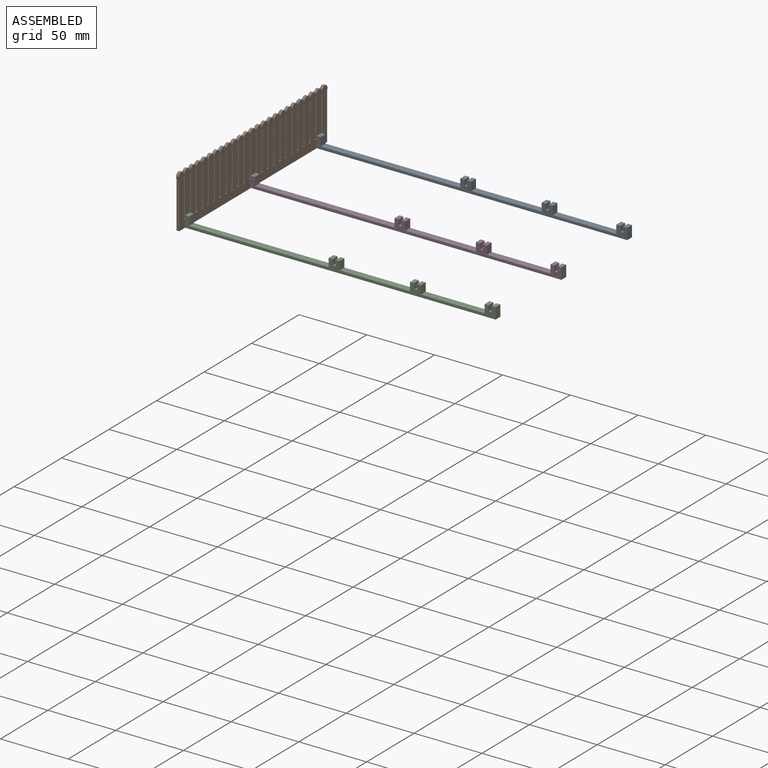
[diagram: assembled view]
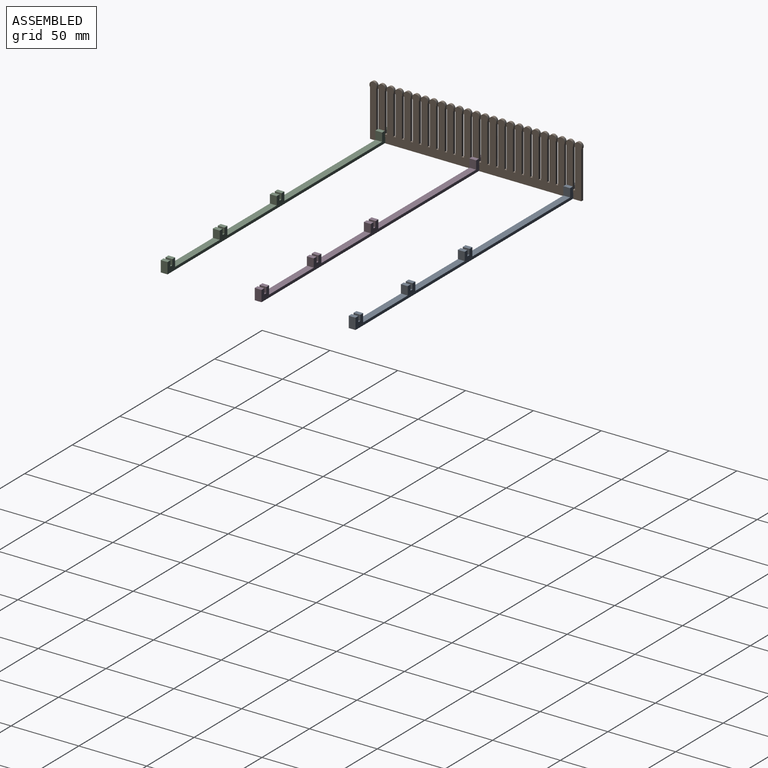
[diagram: assembled view, second angle]
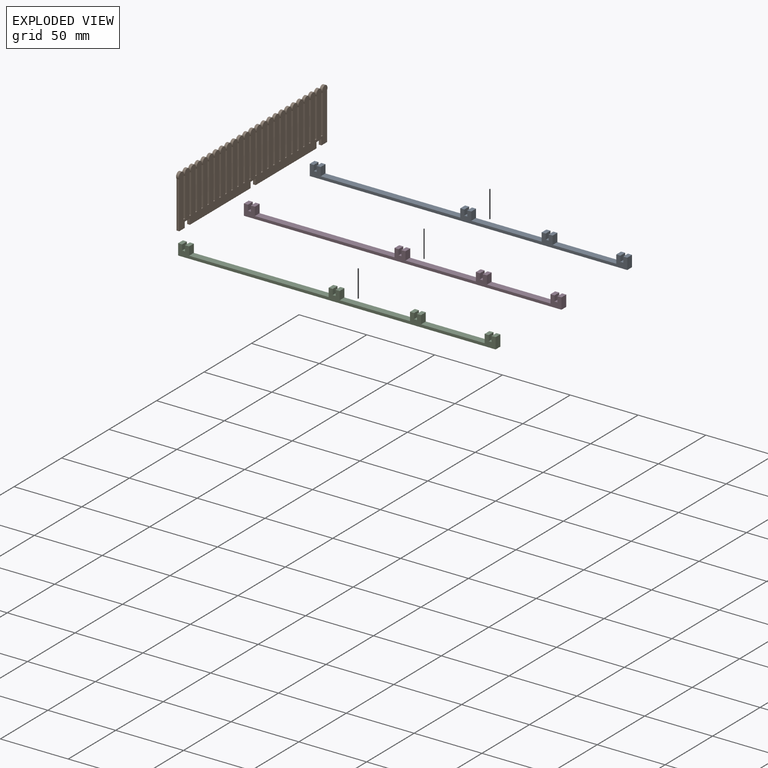
[diagram: exploded view]
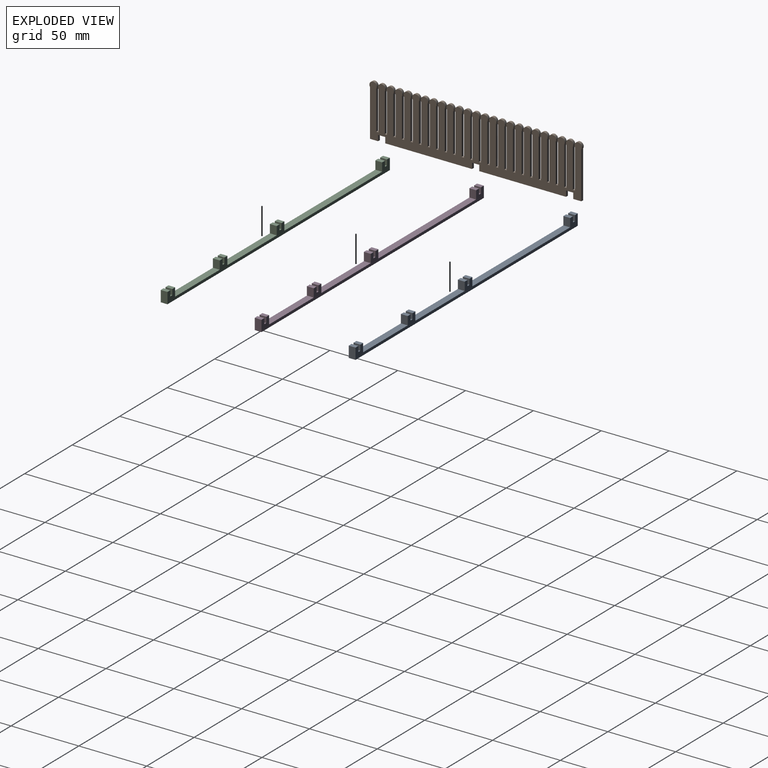
[diagram: exploded view, second angle]
ASSEMBLY  parts=4 mates=3
PART A: 34 faces, bbox 234.1x5x8.2 mm
  f0: plane 8.2x5mm, normal (-1,0,0), area 41mm2, adj f1,f31,f32,f33
  f1: plane 234.1x5mm, normal (0,0,-1), area 1170.5mm2, adj f0,f2,f32,f33
  f2: plane 8.2x5mm, normal (1,0,0), area 41mm2, adj f1,f3,f32,f33
  f3: plane 5x3mm, normal (0,0,1), area 15mm2, adj f2,f4,f32,f33
  f4: plane 5x4.1mm, normal (-1,0,0), area 20.5mm2, adj f3,f5,f32,f33
  f5: plane 5x2.1mm, normal (0,0,1), area 10.5mm2, adj f4,f6,f32,f33
  f6: plane 5x4.1mm, normal (1,0,0), area 20.5mm2, adj f5,f7,f32,f33
  f7: plane 5x3mm, normal (0,0,1), area 15mm2, adj f6,f8,f32,f33
  f8: plane 6.2x5mm, normal (-1,0,0), area 31mm2, adj f7,f9,f32,f33
  f9: plane 46.9x5mm, normal (0,0,1), area 234.5mm2, adj f8,f10,f32,f33
  f10: plane 6.2x5mm, normal (1,0,0), area 31mm2, adj f9,f11,f32,f33
  f11: plane 5x3mm, normal (0,0,1), area 15mm2, adj f10,f12,f32,f33
  f12: plane 5x4.1mm, normal (-1,0,0), area 20.5mm2, adj f11,f13,f32,f33
  f13: plane 5x2.1mm, normal (0,0,1), area 10.5mm2, adj f12,f14,f32,f33
  f14: plane 5x4.1mm, normal (1,0,0), area 20.5mm2, adj f13,f15,f32,f33
  f15: plane 5x3mm, normal (0,0,1), area 15mm2, adj f14,f16,f32,f33
  f16: plane 6.2x5mm, normal (-1,0,0), area 31mm2, adj f15,f17,f32,f33
  f17: plane 51.9x5mm, normal (0,0,1), area 259.5mm2, adj f16,f18,f32,f33
  f18: plane 6.2x5mm, normal (1,0,0), area 31mm2, adj f17,f19,f32,f33
  f19: plane 5x3mm, normal (0,0,1), area 15mm2, adj f18,f20,f32,f33
  f20: plane 5x4.1mm, normal (-1,0,0), area 20.5mm2, adj f19,f21,f32,f33
  f21: plane 5x2.1mm, normal (0,0,1), area 10.5mm2, adj f20,f22,f32,f33
  f22: plane 5x4.1mm, normal (1,0,0), area 20.5mm2, adj f21,f23,f32,f33
  f23: plane 5x3mm, normal (0,0,1), area 15mm2, adj f22,f24,f32,f33
  f24: plane 6.2x5mm, normal (-1,0,0), area 31mm2, adj f23,f25,f32,f33
  f25: plane 102.9x5mm, normal (0,0,1), area 514.5mm2, adj f24,f26,f32,f33
  f26: plane 6.2x5mm, normal (1,0,0), area 31mm2, adj f25,f27,f32,f33
  f27: plane 5x3mm, normal (0,0,1), area 15mm2, adj f26,f28,f32,f33
  f28: plane 5x4.1mm, normal (-1,0,0), area 20.5mm2, adj f27,f29,f32,f33
  f29: plane 5x2.1mm, normal (0,0,1), area 10.5mm2, adj f28,f30,f32,f33
  f30: plane 5x4.1mm, normal (1,0,0), area 20.5mm2, adj f29,f31,f32,f33
  f31: plane 5x3mm, normal (0,0,1), area 15mm2, adj f0,f30,f32,f33
  f32: plane 234.1x8.2mm, normal (0,-1,0), area 634.6mm2, adj f0,f1,f2,f3,f4,f5,f6,f7
  f33: plane 234.1x8.2mm, normal (0,1,0), area 634.6mm2, adj f0,f1,f2,f3,f4,f5,f6,f7
PART B: 115 faces, bbox 156.6x2x38.7 mm
  f0: plane 64x2mm, normal (0,0,-1), area 128mm2, adj f3,f4,f110,f113
  f1: plane 64x2mm, normal (0,0,-1), area 128mm2, adj f3,f4,f107,f111
  f2: plane 5.95x2mm, normal (0,0,-1), area 11.9mm2, adj f3,f4,f34,f108
  f3: plane 156.6x38.7mm, normal (0,-1,0), area 4623.5mm2, adj f0,f1,f2,f5,f6,f7,f8,f9
  f4: plane 156.6x38.7mm, normal (0,1,0), area 4623.5mm2, adj f0,f1,f2,f5,f6,f7,f8,f9
  f5: plane 28.59x2mm, normal (1,0,0), area 57.2mm2, adj f3,f4,f6,f105
  f6: cylinder r=2.7mm len=5.4mm, axis (0,1,0), area 22.9mm2, adj f3,f4,f5,f7
  f7: plane 28.59x2mm, normal (-1,0,0), area 57.2mm2, adj f3,f4,f6,f8
  f8: plane 2x1.7mm, normal (0,0,1), area 3.4mm2, adj f3,f4,f7,f9
  f9: plane 28.59x2mm, normal (1,0,0), area 57.2mm2, adj f3,f4,f8,f10
  f10: cylinder r=2.7mm len=5.4mm, axis (0,1,0), area 22.9mm2, adj f3,f4,f9,f11
  f11: plane 28.59x2mm, normal (-1,0,0), area 57.2mm2, adj f3,f4,f10,f12
  f12: plane 2x1.7mm, normal (0,0,1), area 3.4mm2, adj f3,f4,f11,f13
  f13: plane 28.59x2mm, normal (1,0,0), area 57.2mm2, adj f3,f4,f12,f14
  f14: cylinder r=2.7mm len=5.4mm, axis (0,1,0), area 22.9mm2, adj f3,f4,f13,f15
  f15: plane 28.59x2mm, normal (-1,0,0), area 57.2mm2, adj f3,f4,f14,f16
  f16: plane 2x1.7mm, normal (0,0,1), area 3.4mm2, adj f3,f4,f15,f17
  f17: plane 28.59x2mm, normal (1,0,0), area 57.2mm2, adj f3,f4,f16,f18
  f18: cylinder r=2.7mm len=5.4mm, axis (0,1,0), area 22.9mm2, adj f3,f4,f17,f19
  f19: plane 28.59x2mm, normal (-1,0,0), area 57.2mm2, adj f3,f4,f18,f20
  f20: plane 2x1.7mm, normal (0,0,1), area 3.4mm2, adj f3,f4,f19,f21
  f21: plane 28.59x2mm, normal (1,0,0), area 57.2mm2, adj f3,f4,f20,f22
  f22: cylinder r=2.7mm len=5.4mm, axis (0,1,0), area 22.9mm2, adj f3,f4,f21,f23
  f23: plane 28.59x2mm, normal (-1,0,0), area 57.2mm2, adj f3,f4,f22,f24
  f24: plane 2x1.7mm, normal (0,0,1), area 3.4mm2, adj f3,f4,f23,f25
  f25: plane 28.59x2mm, normal (1,0,0), area 57.2mm2, adj f3,f4,f24,f26
  f26: cylinder r=2.7mm len=5.4mm, axis (0,1,0), area 22.9mm2, adj f3,f4,f25,f27
  f27: plane 28.59x2mm, normal (-1,0,0), area 57.2mm2, adj f3,f4,f26,f28
  f28: plane 2x1.7mm, normal (0,0,1), area 3.4mm2, adj f3,f4,f27,f29
  f29: plane 28.59x2mm, normal (1,0,0), area 57.2mm2, adj f3,f4,f28,f30
  f30: cylinder r=2.7mm len=5.4mm, axis (0,1,0), area 22.9mm2, adj f3,f4,f29,f31
  f31: plane 28.59x2mm, normal (-1,0,0), area 57.2mm2, adj f3,f4,f30,f32
  f32: plane 6x2mm, normal (-1,0,0), area 12mm2, adj f3,f4,f31,f33
  f33: plane 5.95x2mm, normal (0,0,-1), area 11.9mm2, adj f3,f4,f32,f112
  f34: plane 34.59x2mm, normal (1,0,0), area 69.2mm2, adj f2,f3,f4,f35
  f35: cylinder r=2.7mm len=5.4mm, axis (0,1,0), area 22.9mm2, adj f3,f4,f34,f36
  f36: plane 28.59x2mm, normal (-1,0,0), area 57.2mm2, adj f3,f4,f35,f37
  f37: plane 2x1.7mm, normal (0,0,1), area 3.4mm2, adj f3,f4,f36,f38
  f38: plane 28.59x2mm, normal (1,0,0), area 57.2mm2, adj f3,f4,f37,f39
  f39: cylinder r=2.7mm len=5.4mm, axis (0,1,0), area 22.9mm2, adj f3,f4,f38,f40
  f40: plane 28.59x2mm, normal (-1,0,0), area 57.2mm2, adj f3,f4,f39,f41
  f41: plane 2x1.7mm, normal (0,0,1), area 3.4mm2, adj f3,f4,f40,f42
  f42: plane 28.59x2mm, normal (1,0,0), area 57.2mm2, adj f3,f4,f41,f43
  f43: cylinder r=2.7mm len=5.4mm, axis (0,1,0), area 22.9mm2, adj f3,f4,f42,f44
  f44: plane 28.59x2mm, normal (-1,0,0), area 57.2mm2, adj f3,f4,f43,f45
  f45: plane 2x1.7mm, normal (0,0,1), area 3.4mm2, adj f3,f4,f44,f46
  f46: plane 28.59x2mm, normal (1,0,0), area 57.2mm2, adj f3,f4,f45,f47
  f47: cylinder r=2.7mm len=5.4mm, axis (0,1,0), area 22.9mm2, adj f3,f4,f46,f48
  f48: plane 28.59x2mm, normal (-1,0,0), area 57.2mm2, adj f3,f4,f47,f49
  f49: plane 2x1.7mm, normal (0,0,1), area 3.4mm2, adj f3,f4,f48,f50
  f50: plane 28.59x2mm, normal (1,0,0), area 57.2mm2, adj f3,f4,f49,f51
  f51: cylinder r=2.7mm len=5.4mm, axis (0,1,0), area 22.9mm2, adj f3,f4,f50,f52
  f52: plane 28.59x2mm, normal (-1,0,0), area 57.2mm2, adj f3,f4,f51,f53
  f53: plane 2x1.7mm, normal (0,0,1), area 3.4mm2, adj f3,f4,f52,f54
  f54: plane 28.59x2mm, normal (1,0,0), area 57.2mm2, adj f3,f4,f53,f55
  f55: cylinder r=2.7mm len=5.4mm, axis (0,1,0), area 22.9mm2, adj f3,f4,f54,f56
  f56: plane 28.59x2mm, normal (-1,0,0), area 57.2mm2, adj f3,f4,f55,f57
  f57: plane 2x1.7mm, normal (0,0,1), area 3.4mm2, adj f3,f4,f56,f58
  f58: plane 28.59x2mm, normal (1,0,0), area 57.2mm2, adj f3,f4,f57,f59
  f59: cylinder r=2.7mm len=5.4mm, axis (0,1,0), area 22.9mm2, adj f3,f4,f58,f60
  f60: plane 28.59x2mm, normal (-1,0,0), area 57.2mm2, adj f3,f4,f59,f61
  f61: plane 2x1.7mm, normal (0,0,1), area 3.4mm2, adj f3,f4,f60,f62
  f62: plane 28.59x2mm, normal (1,0,0), area 57.2mm2, adj f3,f4,f61,f63
  f63: cylinder r=2.7mm len=5.4mm, axis (0,1,0), area 22.9mm2, adj f3,f4,f62,f64
  f64: plane 28.59x2mm, normal (-1,0,0), area 57.2mm2, adj f3,f4,f63,f65
  f65: plane 2x1.7mm, normal (0,0,1), area 3.4mm2, adj f3,f4,f64,f66
  f66: plane 28.59x2mm, normal (1,0,0), area 57.2mm2, adj f3,f4,f65,f67
  f67: cylinder r=2.7mm len=5.4mm, axis (0,1,0), area 22.9mm2, adj f3,f4,f66,f68
  f68: plane 28.59x2mm, normal (-1,0,0), area 57.2mm2, adj f3,f4,f67,f69
  f69: plane 2x1.7mm, normal (0,0,1), area 3.4mm2, adj f3,f4,f68,f70
  f70: plane 28.59x2mm, normal (1,0,0), area 57.2mm2, adj f3,f4,f69,f71
  f71: cylinder r=2.7mm len=5.4mm, axis (0,1,0), area 22.9mm2, adj f3,f4,f70,f72
  f72: plane 28.59x2mm, normal (-1,0,0), area 57.2mm2, adj f3,f4,f71,f73
  f73: plane 2x1.7mm, normal (0,0,1), area 3.4mm2, adj f3,f4,f72,f74
  f74: plane 28.59x2mm, normal (1,0,0), area 57.2mm2, adj f3,f4,f73,f75
  f75: cylinder r=2.7mm len=5.4mm, axis (0,1,0), area 22.9mm2, adj f3,f4,f74,f76
  f76: plane 28.59x2mm, normal (-1,0,0), area 57.2mm2, adj f3,f4,f75,f77
  f77: plane 2x1.7mm, normal (0,0,1), area 3.4mm2, adj f3,f4,f76,f78
  f78: plane 28.59x2mm, normal (1,0,0), area 57.2mm2, adj f3,f4,f77,f79
  f79: cylinder r=2.7mm len=5.4mm, axis (0,1,0), area 22.9mm2, adj f3,f4,f78,f80
  f80: plane 28.59x2mm, normal (-1,0,0), area 57.2mm2, adj f3,f4,f79,f81
  f81: plane 2x1.7mm, normal (0,0,1), area 3.4mm2, adj f3,f4,f80,f82
  f82: plane 28.59x2mm, normal (1,0,0), area 57.2mm2, adj f3,f4,f81,f83
  f83: cylinder r=2.7mm len=5.4mm, axis (0,1,0), area 22.9mm2, adj f3,f4,f82,f84
  f84: plane 28.59x2mm, normal (-1,0,0), area 57.2mm2, adj f3,f4,f83,f85
  f85: plane 2x1.7mm, normal (0,0,1), area 3.4mm2, adj f3,f4,f84,f86
  f86: plane 28.59x2mm, normal (1,0,0), area 57.2mm2, adj f3,f4,f85,f87
  f87: cylinder r=2.7mm len=5.4mm, axis (0,1,0), area 22.9mm2, adj f3,f4,f86,f88
  f88: plane 28.59x2mm, normal (-1,0,0), area 57.2mm2, adj f3,f4,f87,f89
  f89: plane 2x1.7mm, normal (0,0,1), area 3.4mm2, adj f3,f4,f88,f90
  f90: plane 28.59x2mm, normal (1,0,0), area 57.2mm2, adj f3,f4,f89,f91
  f91: cylinder r=2.7mm len=5.4mm, axis (0,1,0), area 22.9mm2, adj f3,f4,f90,f92
  f92: plane 28.59x2mm, normal (-1,0,0), area 57.2mm2, adj f3,f4,f91,f93
  f93: plane 2x1.7mm, normal (0,0,1), area 3.4mm2, adj f3,f4,f92,f94
  f94: plane 28.59x2mm, normal (1,0,0), area 57.2mm2, adj f3,f4,f93,f95
  f95: cylinder r=2.7mm len=5.4mm, axis (0,1,0), area 22.9mm2, adj f3,f4,f94,f96
  f96: plane 28.59x2mm, normal (-1,0,0), area 57.2mm2, adj f3,f4,f95,f97
  f97: plane 2x1.7mm, normal (0,0,1), area 3.4mm2, adj f3,f4,f96,f98
  f98: plane 28.59x2mm, normal (1,0,0), area 57.2mm2, adj f3,f4,f97,f99
  f99: cylinder r=2.7mm len=5.4mm, axis (0,1,0), area 22.9mm2, adj f3,f4,f98,f100
  f100: plane 28.59x2mm, normal (-1,0,0), area 57.2mm2, adj f3,f4,f99,f101
  f101: plane 2x1.7mm, normal (0,0,1), area 3.4mm2, adj f3,f4,f100,f102
  f102: plane 28.59x2mm, normal (1,0,0), area 57.2mm2, adj f3,f4,f101,f103
  f103: cylinder r=2.7mm len=5.4mm, axis (0,1,0), area 22.9mm2, adj f3,f4,f102,f104
  f104: plane 28.59x2mm, normal (-1,0,0), area 57.2mm2, adj f3,f4,f103,f105
  f105: plane 2x1.7mm, normal (0,0,1), area 3.4mm2, adj f3,f4,f5,f104
  f106: plane 5.3x2mm, normal (0,0,-1), area 10.6mm2, adj f3,f4,f107,f108
  f107: plane 4.2x2mm, normal (1,0,0), area 8.4mm2, adj f1,f3,f4,f106
  f108: plane 4.2x2mm, normal (-1,0,0), area 8.4mm2, adj f2,f3,f4,f106
  f109: plane 5.3x2mm, normal (0,0,-1), area 10.6mm2, adj f3,f4,f110,f111
  f110: plane 4.2x2mm, normal (1,0,0), area 8.4mm2, adj f0,f3,f4,f109
  f111: plane 4.2x2mm, normal (-1,0,0), area 8.4mm2, adj f1,f3,f4,f109
  f112: plane 4.2x2mm, normal (1,0,0), area 8.4mm2, adj f3,f4,f33,f114
  f113: plane 4.2x2mm, normal (-1,0,0), area 8.4mm2, adj f0,f3,f4,f114
  f114: plane 5.3x2mm, normal (0,0,-1), area 10.6mm2, adj f3,f4,f112,f113
PART C: same geometry as A
PART D: same geometry as A
PLACE A t=(30.22,158.98,39.24)mm
PLACE B rot(axis=(0,0,1),90deg) t=(33.27,9.28,45.14)mm
PLACE C t=(30.22,20.38,39.24)mm
PLACE D t=(30.22,89.68,39.24)mm
MATE fastened B.f109 <-> D.f29  axis (0,0,-1) through (34.27,87.18,43.34)mm
MATE fastened B.f106 <-> A.f29  axis (0,0,-1) through (34.27,156.48,43.34)mm
MATE fastened C.f29 <-> B.f114  axis (0,0,1) through (34.27,17.88,43.34)mm
